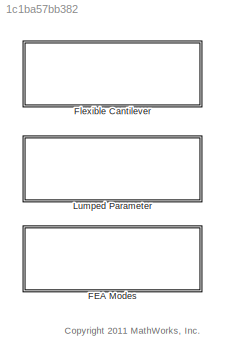
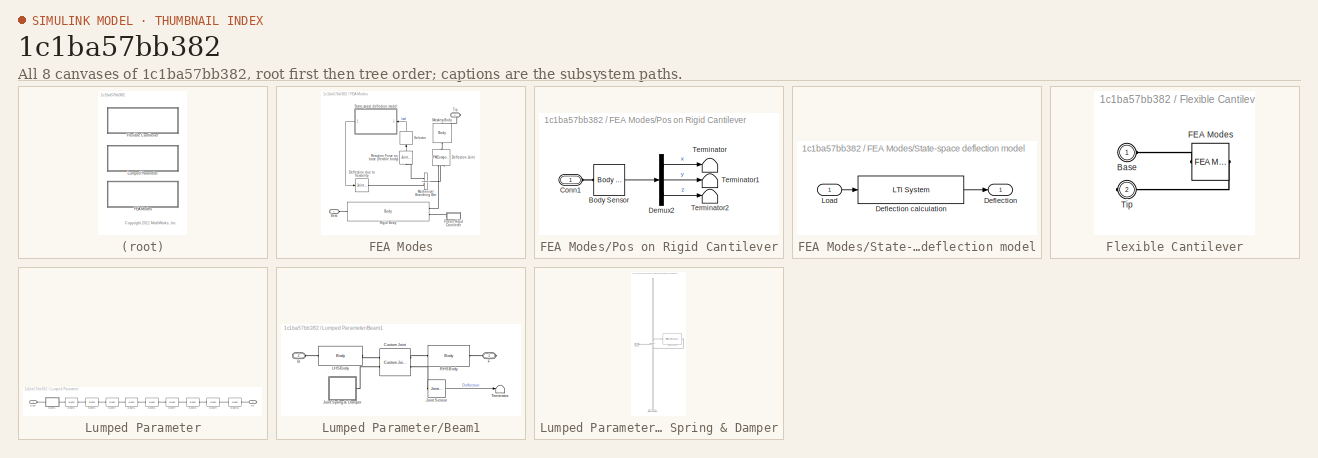
[diagram: thumbnail index - all 8 canvases of the model, root first then tree order]
MODEL slx_1c1ba57bb382
KIND library
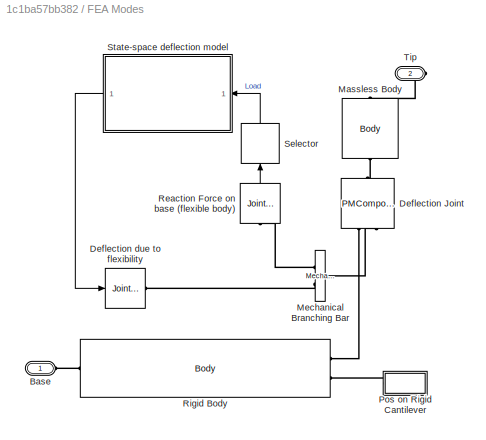
BLOCK [SubSystem] FEA Modes
  FunctionWithSeparateData = off
  MaskHideContents = off
  MinAlgLoopOccurrences = off
  Opaque = off
  Ports = [0, 0, 0, 0, 0, 1, 1]
  PropExecContextOutsideSubsystem = off
  RTWSystemCode = Auto
  RequestExecContextInheritance = off
  ShowPortLabels = FromPortBlockName
BLOCK [PMIOPort] FEA Modes/Base
  Port = 1
  Side = Left
BLOCK [PMComponent] FEA Modes/Deflection Joint
  CloseFcn = mech_support('CloseFcn',gcbh);
  CopyFcn = mech_rtmsupport('CopyFcn',gcbh);mech_support('CopyFcn',gcbh);
  DeleteFcn = mech_rtmsupport('DeleteFcn',gcbh);mech_support('DeleteFcn',gcbh);
  DialogController = MECH.DynMechDlgSource
  InitFcn = mech_support('InitFcn');
  LConnTagsString = __newl0|SA1
  LeftPortType = blob
  LoadFcn = mech_rtmsupport('LoadFcn',gcbh);mech_support('LoadFcn',gcbh);
  ModelCloseFcn = mech_support('ModelCloseFcn',gcbh);
  NameChangeFcn = mech_support('NameChangeFcn',gcbh);
  PhysicalDomain = mechanical
  Ports = [0, 0, 0, 0, 0, 2, 1]
  PostSaveFcn = mech_rtmsupport('PostSaveFcn',gcbh);mech_support('PostSaveFcn');
  PreCopyFcn = mech_rtmsupport('PreCopyFcn',gcbh);
  PreDeleteFcn = mech_rtmsupport('PreDeleteFcn',gcbh);
  PreSaveFcn = mech_rtmsupport('PreSaveFcn',gcbh);mech_support('PreSaveFcn');
  RConnTagsString = __newr0
  RightPortType = blob
  StartFcn = mech_support('StartFcn',gcbh);
  StopFcn = mech_support('StopFcn',gcbh);
  SubClassName = Unknown
  UndoDeleteFcn = mech_support('UndoDeleteFcn',gcbh);
BLOCK [Reference] FEA Modes/Deflection due to flexibility  REF=mblibv1/Sensors & 
Actuators/Joint Actuator
  AccelerationUnits = m/s^2
  ActiveIO = off
  ActuationStyle = Motion
  AngleUnits = deg
  ArcAccelerationUnits = deg/s^2
  ArcVelocityUnits = deg/s
  ClassName = JointActuator
  CoordPositionUnits = m
  DialogClass = MechanicalActuatorBlock
  ForceUnits = N
  PhysicalDomain = Mechanical
  PortType = blob
  Ports = [1, 0, 0, 0, 0, 0, 1]
  Primitive = P1
  ReferenceFrame = Absolute (World)
  SourceBlock = mblibv1/Sensors & \nActuators/Joint Actuator
  SourceType = Joint Actuator
  TorqueUnits = N*m
  UpdateFromCAD = off
  VelocityUnits = m/s
  Width = 1
BLOCK [Reference] FEA Modes/Massless Body  REF=mblibv1/Bodies/Body
  AttachedToCS = CG
  BodyColor = [1 0 0]
  BodyColorSelMode = MACHINE_DEFAULT
  CG = Left$CG$[0 0 0]$CS1$CS1$m$[0 0 0]$Euler X-Y-Z$deg$WORLD$false$none
  CGPos = [0 0 0]
  CGRot = [0 0 0]
  CS0Pos = []
  CS0Rot = []
  CS10Pos = []
  CS10Rot = []
  CS11Pos = []
  CS11Rot = []
  CS12Pos = []
  CS12Rot = []
  CS13Pos = []
  CS13Rot = []
  CS14Pos = []
  CS14Rot = []
  CS15Pos = []
  CS15Rot = []
  CS16Pos = []
  CS16Rot = []
  CS17Pos = []
  CS17Rot = []
  CS18Pos = []
  CS18Rot = []
  CS19Pos = []
  CS19Rot = []
  CS1Pos = [0 0 0]
  CS1Rot = [0 0 0]
  CS20Pos = []
  CS20Rot = []
  CS2Pos = [0 0 0]
  CS2Rot = [0 0 0]
  CS3Pos = []
  CS3Rot = []
  CS4Pos = []
  CS4Rot = []
  CS5Pos = []
  CS5Rot = []
  CS6Pos = []
  CS6Rot = []
  CS7Pos = []
  CS7Rot = []
  CS8Pos = []
  CS8Rot = []
  CS9Pos = []
  CS9Rot = []
  ClassName = Body
  Density = 1
  DensityUnits = kg/m^3
  DensityUse = false
  DialogClass = MechanicalBodyBlock
  GraphicsMode = MACHINE_DEFAULT
  Inertia = eye(3)
  InertiaUnits = kg*m^2
  LConnTagsString = CS1
  Mass = 0
  MassUnits = kg
  Ports = [0, 0, 0, 0, 0, 1, 1]
  RConnTagsString = CS2
  Shape = Cylinder
  ShapeDims = [1 1]
  ShapeUnits = m
  ShapeUse = false
  SourceBlock = mblibv1/Bodies/Body
  SourceType = Body
  UpdateFromCAD = off
  WorkingFrames = Left$CS1$[0 0 0]$Adjoining$Adjoining$m$[0 0 0]$Euler X-Y-Z$deg$WORLD$true$none#Right$CS2$[0 0 0]$CG$CG$m$[0 0 0]$Euler X-Y-Z$deg$WORLD$true$none
BLOCK [Reference] FEA Modes/Mechanical Branching Bar  REF=mblibv1/Utilities/Mechanical
Branching
Bar
  ClassName = BranchingBar
  DialogClass = MechanicalBranchingBarBlock
  LConnTagsString = _newl0
  NumSAPorts = 2
  Ports = [0, 0, 0, 0, 0, 1, 2]
  RConnTagsString = SA0|SA1
  SourceBlock = mblibv1/Utilities/Mechanical\nBranching\nBar
  SourceType = Mechanical Branching Bar
  UpdateFromCAD = off
BLOCK [SubSystem] FEA Modes/Pos on Rigid Cantilever
  FunctionWithSeparateData = off
  MaskHideContents = off
  MinAlgLoopOccurrences = off
  Opaque = off
  Ports = [0, 0, 0, 0, 0, 1]
  PropExecContextOutsideSubsystem = off
  RTWSystemCode = Auto
  RequestExecContextInheritance = off
BLOCK [Reference] FEA Modes/Pos on Rigid Cantilever/Body Sensor  REF=mblibv1/Sensors & 
Actuators/Body Sensor
  Acceleration = off
  AccelerationUnits = m/s^2
  ActiveIO = off
  Angle = on
  AngleUnits = deg
  ArcAcceleration = off
  ArcAccelerationUnits = deg/s^2
  ArcVelocity = off
  ArcVelocityUnits = deg/s
  ClassName = BodySensor
  CoordPosition = on
  CoordPositionUnits = m
  DialogClass = MechanicalSensorBlock
  Muxed = on
  OutputVector = [1]
  PhysicalDomain = Mechanical
  PortType = blob
  Ports = [0, 1, 0, 0, 0, 1]
  Pose = off
  Quaternion = on
  QuaternionDDT = off
  QuaternionDT = off
  QuaternionUnits = off
  ReferenceFrame = Absolute (World)
  SourceBlock = mblibv1/Sensors & \nActuators/Body Sensor
  SourceType = Body Sensor
  UpdateFromCAD = off
  Velocity = off
  VelocityUnits = m/s
  Width = 3
BLOCK [PMIOPort] FEA Modes/Pos on Rigid Cantilever/Conn1
  Port = 1
  Side = Left
BLOCK [Demux] FEA Modes/Pos on Rigid Cantilever/Demux2
  DisplayOption = bar
  Outputs = 3
  Ports = [1, 3]
BLOCK [Terminator] FEA Modes/Pos on Rigid Cantilever/Terminator
BLOCK [Terminator] FEA Modes/Pos on Rigid Cantilever/Terminator1
BLOCK [Terminator] FEA Modes/Pos on Rigid Cantilever/Terminator2
BLOCK [Reference] FEA Modes/Reaction Force on base (flexible body)  REF=mblibv1/Sensors & 
Actuators/Joint Sensor
  Acceleration = off
  AccelerationUnits = m/s^2
  ActiveIO = off
  Angle = on
  AngleUnits = deg
  ArcAcceleration = off
  ArcAccelerationUnits = deg/s^2
  ArcVelocity = off
  ArcVelocityUnits = deg/s
  ClassName = JointSensor
  CoordPosition = off
  CoordPositionUnits = m
  DialogClass = MechanicalSensorBlock
  Force = off
  ForceUnits = N
  Muxed = on
  OutputVector = [1]
  PhysicalDomain = Mechanical
  PortType = blob
  Ports = [0, 1, 0, 0, 0, 1]
  Pose = off
  Primitive = P1
  Quaternion = on
  QuaternionDDT = off
  QuaternionDT = off
  QuaternionUnits = off
  ReactionForce = on
  ReactionForceUnits = N
  ReactionMoment = off
  ReactionMomentUnits = N*m
  ReactionReferenceFrame = Local (Body CS)
  ReactionSensedSide = Base
  ReferenceFrame = Absolute (World)
  SourceBlock = mblibv1/Sensors & \nActuators/Joint Sensor
  SourceType = Joint Sensor
  Torque = off
  TorqueUnits = N*m
  UpdateFromCAD = off
  Velocity = off
  VelocityUnits = m/s
  Width = 1
BLOCK [Reference] FEA Modes/Rigid Body  REF=mblibv1/Bodies/Body
  AttachedToCS = 1
  BodyColor = [0.5 0.5 0.5]
  BodyColorSelMode = MACHINE_DEFAULT
  CG = Left$CG$[L/2 0 0]$CS1$CS1$m$[0 0 0]$Euler X-Y-Z$deg$CS1$false$none
  CGPos = [L/2 0 0]
  CGRot = [0 0 0]
  CS0Pos = []
  CS0Rot = []
  CS10Pos = [0 a -b]
  CS10Rot = [0 0 0]
  CS11Pos = []
  CS11Rot = []
  CS12Pos = []
  CS12Rot = []
  CS13Pos = []
  CS13Rot = []
  CS14Pos = []
  CS14Rot = []
  CS15Pos = []
  CS15Rot = []
  CS16Pos = []
  CS16Rot = []
  CS17Pos = []
  CS17Rot = []
  CS18Pos = []
  CS18Rot = []
  CS19Pos = []
  CS19Rot = []
  CS1Pos = [0 0 0]
  CS1Rot = [0 0 0]
  CS20Pos = []
  CS20Rot = []
  CS2Pos = [0 a b]
  CS2Rot = [0 0 0]
  CS3Pos = [0 a -b]
  CS3Rot = [0 0 0]
  CS4Pos = [0 -a -b]
  CS4Rot = [0 0 0]
  CS5Pos = [0 -a b]
  CS5Rot = [0 0 0]
  CS6Pos = [L/2 0 0]
  CS6Rot = [0 0 0]
  CS7Pos = [0 a b]
  CS7Rot = [0 0 0]
  CS8Pos = [0 -a -b]
  CS8Rot = [0 0 0]
  CS9Pos = [0 -a b]
  CS9Rot = [0 0 0]
  ClassName = Body
  Density = 1
  DensityUnits = kg/m^3
  DensityUse = false
  DialogClass = MechanicalBodyBlock
  GraphicsMode = 1
  Inertia = inertia
  InertiaUnits = kg*m^2
  LConnTagsString = CS1
  Mass = mass
  MassUnits = kg
  Ports = [0, 0, 0, 0, 0, 1, 2]
  RConnTagsString = CS6|CS8
  Shape = Cylinder
  ShapeDims = [1 1]
  ShapeUnits = m
  ShapeUse = false
  SourceBlock = mblibv1/Bodies/Body
  SourceType = Body
  UpdateFromCAD = off
  WorkingFrames = Left$CS1$[0 0 0]$Adjoining$Adjoining$m$[0 0 0]$Euler X-Y-Z$deg$Adjoining$true$none#Right$CS2$[0 a b]$CS1$CS1$m$[0 0 0]$Euler X-Y-Z$deg$CS1$false$none#Right$CS3$[0 a -b]$CS1$CS1$m$[0 0 0]$Euler X-Y-Z$deg$CS1$false$none#Right$CS5$[0 -a b]$CS1$CS1$m$[0 0 0]$Euler X-Y-Z$deg$CS1$false$none#Right$CS4$[0 -a -b]$CS1$CS1$m$[0 0 0]$Euler X-Y-Z$deg$CS1$false$none#Right$CS6$[L/2 0 0]$CG$CG$m$[0 0 0]$Euler X-Y...<+292ch>
BLOCK [Selector] FEA Modes/Selector
  IndexOptions = Index vector (dialog)
  Indices = [2]
  InputPortWidth = 3
  OutputSizes = 1
  Ports = [1, 1]
BLOCK [SubSystem] FEA Modes/State-space deflection model
  FunctionWithSeparateData = off
  MaskHideContents = off
  MinAlgLoopOccurrences = off
  Opaque = off
  Ports = [1, 1]
  PropExecContextOutsideSubsystem = off
  RTWSystemCode = Auto
  RequestExecContextInheritance = off
BLOCK [Outport] FEA Modes/State-space deflection model/Deflection
  IconDisplay = Port number
BLOCK [Reference] FEA Modes/State-space deflection model/Deflection calculation  REF=cstblocks/LTI System
  FunctionWithSeparateData = off
  IC = []
  Ports = [1, 1]
  RTWMemSecDataConstants = Inherit from model
  RTWMemSecDataInternal = Inherit from model
  RTWMemSecDataParameters = Inherit from model
  RTWMemSecFuncExecute = Inherit from model
  RTWMemSecFuncInitTerm = Inherit from model
  ShowPortLabels = FromPortIcon
  SourceBlock = cstblocks/LTI System
  SourceType = LTI Block
  SystemSampleTime = -1
  sys = ss_cantilever_pva
BLOCK [Inport] FEA Modes/State-space deflection model/Load
  IconDisplay = Port number
BLOCK [PMIOPort] FEA Modes/Tip
  Port = 2
  Side = Right
BLOCK [SubSystem] Flexible Cantilever
  BlockChoice = FEA Modes
  FunctionWithSeparateData = off
  MaskHideContents = off
  MemberBlocks = FEA Modes,Lumped Parameter
  MinAlgLoopOccurrences = off
  Opaque = off
  Ports = [0, 0, 0, 0, 0, 1, 1]
  PropExecContextOutsideSubsystem = off
  RTWSystemCode = Auto
  RequestExecContextInheritance = off
  TemplateBlock = self
BLOCK [PMIOPort] Flexible Cantilever/Base
  Port = 1
  Side = Left
BLOCK [Reference] Flexible Cantilever/FEA Modes  REF=Flex_Cantilever_Lib/FEA Modes
  Ports = [0, 0, 0, 0, 0, 1, 1]
  SourceBlock = Flex_Cantilever_Lib/FEA Modes
  SourceType = Cantilever
  cantileverData = cantilever_aluminum
BLOCK [PMIOPort] Flexible Cantilever/Tip
  Port = 2
  Side = Right
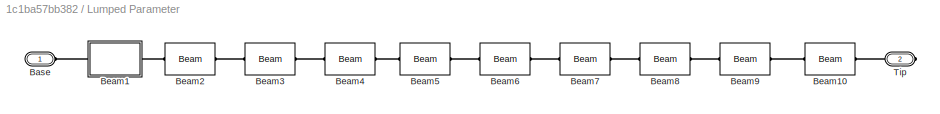
BLOCK [SubSystem] Lumped Parameter
  FunctionWithSeparateData = off
  MaskHideContents = off
  MinAlgLoopOccurrences = off
  Opaque = off
  Ports = [0, 0, 0, 0, 0, 1, 1]
  PropExecContextOutsideSubsystem = off
  RTWSystemCode = Auto
  RequestExecContextInheritance = off
BLOCK [PMIOPort] Lumped Parameter/Base
  Port = 1
  Side = Left
BLOCK [SubSystem] Lumped Parameter/Beam1
  FunctionWithSeparateData = off
  MaskHideContents = off
  MinAlgLoopOccurrences = off
  Opaque = off
  Ports = [0, 0, 0, 0, 0, 1, 1]
  PropExecContextOutsideSubsystem = off
  RTWSystemCode = Auto
  RequestExecContextInheritance = off
BLOCK [PMIOPort] Lumped Parameter/Beam1/B
  Port = 2
  Side = Left
BLOCK [Reference] Lumped Parameter/Beam1/Custom Joint  REF=mblibv1/Joints/Custom Joint
  ClassName = Joint
  CutJoint = off
  DialogClass = JointBlock
  LConnTagsString = __newl0|SA1
  MarkAsCut = off
  NumSAPorts = 2
  P1Axis = []
  P2Axis = []
  P3Axis = []
  Ports = [0, 0, 0, 0, 0, 2, 2]
  PrimitiveProps = R1$Base$[0 0 1]$Revolute
  Primitives = revolute
  R1Axis = [0 0 1]
  R2Axis = []
  R3Axis = []
  RConnTagsString = __newr0|SA1
  SAxis = []
  SourceBlock = mblibv1/Joints/Custom Joint
  SourceType = Custom Joint
  UpdateFromCAD = off
BLOCK [PMIOPort] Lumped Parameter/Beam1/F
  Port = 1
  Side = Right
BLOCK [Reference] Lumped Parameter/Beam1/Joint Sensor  REF=mblibv1/Sensors & 
Actuators/Joint Sensor
  Acceleration = off
  AccelerationUnits = m/s^2
  ActiveIO = off
  Angle = on
  AngleUnits = rad
  ArcAcceleration = off
  ArcAccelerationUnits = deg/s^2
  ArcVelocity = off
  ArcVelocityUnits = rad/s
  ClassName = JointSensor
  CoordPosition = on
  CoordPositionUnits = m
  DialogClass = MechanicalSensorBlock
  Force = off
  ForceUnits = N
  Muxed = off
  OutputVector = [1]
  PhysicalDomain = Mechanical
  PortType = blob
  Ports = [0, 1, 0, 0, 0, 1]
  Pose = off
  Primitive = R1
  Quaternion = on
  QuaternionDDT = off
  QuaternionDT = off
  QuaternionUnits = off
  ReactionForce = off
  ReactionForceUnits = N
  ReactionMoment = off
  ReactionMomentUnits = N*m
  ReactionReferenceFrame = Absolute (World)
  ReactionSensedSide = Base
  ReferenceFrame = Absolute (World)
  SourceBlock = mblibv1/Sensors & \nActuators/Joint Sensor
  SourceType = Joint Sensor
  Torque = off
  TorqueUnits = N*m
  UpdateFromCAD = off
  Velocity = off
  VelocityUnits = m/s
  Width = 1
BLOCK [SubSystem] Lumped Parameter/Beam1/Joint Spring & Damper
  CloseFcn = mech_support('CloseFcn',gcbh);
  CopyFcn = mech_rtmsupport('CopyFcn',gcbh);mech_support('CopyFcn',gcbh);
  DeleteFcn = mech_rtmsupport('DeleteFcn',gcbh);mech_support('DeleteFcn',gcbh);
  DialogController = MECH.DynMechDlgSource
  FunctionWithSeparateData = off
  LoadFcn = mech_rtmsupport('LoadFcn',gcbh);mech_support('LoadFcn',gcbh);
  MaskHideContents = off
  MinAlgLoopOccurrences = off
  ModelCloseFcn = mech_support('ModelCloseFcn',gcbh);
  NameChangeFcn = mech_support('NameChangeFcn',gcbh);
  Opaque = off
  Ports = [0, 0, 0, 0, 0, 1]
  PostSaveFcn = mech_rtmsupport('PostSaveFcn',gcbh);mech_support('PostSaveFcn');
  PreCopyFcn = mech_rtmsupport('PreCopyFcn',gcbh);
  PreDeleteFcn = mech_rtmsupport('PreDeleteFcn',gcbh);
  PreSaveFcn = mech_rtmsupport('PreSaveFcn',gcbh);mech_support('PreSaveFcn');
  PropExecContextOutsideSubsystem = off
  RTWSystemCode = Auto
  RequestExecContextInheritance = off
  StartFcn = mech_support('StartFcn',gcbh);
  StopFcn = mech_support('StopFcn',gcbh);
  UndoDeleteFcn = mech_support('UndoDeleteFcn',gcbh);
BLOCK [PMIOPort] Lumped Parameter/Beam1/Joint Spring & Damper/Conn1
  Port = 1
  Side = Left
BLOCK [Reference] Lumped Parameter/Beam1/Joint Spring & Damper/Mechanical Branching Bar  REF=mblibv1/Utilities/Mechanical
Branching
Bar
  ClassName = BranchingBar
  DialogClass = MechanicalBranchingBarBlock
  LConnTagsString = _newl0
  NumSAPorts = 14
  Ports = [0, 0, 0, 0, 0, 1, 14]
  RConnTagsString = SA1|SA2|SA3|SA4|SA5|SA6|SA7|SA8|SA9|SA10|SA11|SA12|SA13|SA14
  SourceBlock = mblibv1/Utilities/Mechanical\nBranching\nBar
  SourceType = Mechanical Branching Bar
  UpdateFromCAD = off
BLOCK [Reference] Lumped Parameter/Beam1/Joint Spring & Damper/SpringDamper4  REF=SingleDofForceElement/Primitive Spring&Damper
  Ports = [0, 0, 0, 0, 0, 1, 1]
  SourceBlock = SingleDofForceElement/Primitive Spring&Damper
  SourceType = Unknown
  actuatedPrimitive = R1
  angleUnits = rad
  angleVelocityUnits = rad/s
  damperConstant = fBeamElement.matDamping
  damperVelocityOffset = 0
  forceUnits = N
  positionUnits = m
  springConstant = fBeamElement.EI/fBeamElement.length
  springPositionOffset = 0
  torqueUnits = N*m
  velocityUnits = m/s
BLOCK [Reference] Lumped Parameter/Beam1/LHSBody  REF=mblibv1/Bodies/Body
  AttachedToCS = 1
  BodyColor = [0.5 0.5 0.5]
  BodyColorSelMode = MACHINE_DEFAULT
  CG = Left$CG$[fBeamElement.length  0 0]/4$CS1$CS1$m$[0 0 0]$Euler X-Y-Z$deg$CS1$false$none
  CGPos = [fBeamElement.length  0 0]/4
  CGRot = [0 0 0]
  CS0Pos = []
  CS0Rot = []
  CS10Pos = []
  CS10Rot = []
  CS11Pos = []
  CS11Rot = []
  CS12Pos = []
  CS12Rot = []
  CS13Pos = []
  CS13Rot = []
  CS14Pos = []
  CS14Rot = []
  CS15Pos = []
  CS15Rot = []
  CS16Pos = []
  CS16Rot = []
  CS17Pos = []
  CS17Rot = []
  CS18Pos = []
  CS18Rot = []
  CS19Pos = []
  CS19Rot = []
  CS1Pos = [0 0 0]
  CS1Rot = [0 0 0]
  CS20Pos = []
  CS20Rot = []
  CS2Pos = [fBeamElement.length  0 0]/2
  CS2Rot = [0 0 0]
  CS3Pos = [0 0 0]
  CS3Rot = [0 0 0]
  CS4Pos = [0 0 0]
  CS4Rot = [0 0 0]
  CS5Pos = []
  CS5Rot = []
  CS6Pos = []
  CS6Rot = []
  CS7Pos = []
  CS7Rot = []
  CS8Pos = []
  CS8Rot = []
  CS9Pos = []
  CS9Rot = []
  ClassName = Body
  Density = 1
  DensityUnits = kg/m^3
  DensityUse = false
  DialogClass = MechanicalBodyBlock
  GraphicsMode = 1
  Inertia = fBeamElement.inertia
  InertiaUnits = kg*m^2
  LConnTagsString = CS1
  Mass = fBeamElement.mass
  MassUnits = kg
  Ports = [0, 0, 0, 0, 0, 1, 1]
  RConnTagsString = CS2
  Shape = Cylinder
  ShapeDims = [1 1]
  ShapeUnits = m
  ShapeUse = false
  SourceBlock = mblibv1/Bodies/Body
  SourceType = Body
  UpdateFromCAD = off
  WorkingFrames = Left$CS1$[0 0 0]$Adjoining$Adjoining$m$[0 0 0]$Euler X-Y-Z$deg$Adjoining$true$none#Right$CS2$[fBeamElement.length  0 0]/2$CS1$CS1$m$[0 0 0]$Euler X-Y-Z$deg$CS1$true$none#Left$CS3$[0 0 0]$CG$CG$m$[0 0 0]$Euler X-Y-Z$deg$CS1$false$none#Right$CS4$[0 0 0]$CG$CG$m$[0 0 0]$Euler X-Y-Z$deg$CS1$false$none
BLOCK [Reference] Lumped Parameter/Beam1/RHSBody  REF=mblibv1/Bodies/Body
  AttachedToCS = 1
  BodyColor = [0.5 0.5 0.5]
  BodyColorSelMode = MACHINE_DEFAULT
  CG = Left$CG$[fBeamElement.length  0 0]/2$CS1$CS1$m$[0 0 0]$Euler X-Y-Z$deg$CS1$false$none
  CGPos = [fBeamElement.length  0 0]/2
  CGRot = [0 0 0]
  CS0Pos = []
  CS0Rot = []
  CS10Pos = []
  CS10Rot = []
  CS11Pos = []
  CS11Rot = []
  CS12Pos = []
  CS12Rot = []
  CS13Pos = []
  CS13Rot = []
  CS14Pos = []
  CS14Rot = []
  CS15Pos = []
  CS15Rot = []
  CS16Pos = []
  CS16Rot = []
  CS17Pos = []
  CS17Rot = []
  CS18Pos = []
  CS18Rot = []
  CS19Pos = []
  CS19Rot = []
  CS1Pos = [0 0 0]
  CS1Rot = [0 0 0]
  CS20Pos = []
  CS20Rot = []
  CS2Pos = [fBeamElement.length  0 0]/2
  CS2Rot = [0 0 0]
  CS3Pos = [0 0 0]
  CS3Rot = [0 0 0]
  CS4Pos = [0 0 0]
  CS4Rot = [0 0 0]
  CS5Pos = []
  CS5Rot = []
  CS6Pos = []
  CS6Rot = []
  CS7Pos = []
  CS7Rot = []
  CS8Pos = []
  CS8Rot = []
  CS9Pos = []
  CS9Rot = []
  ClassName = Body
  Density = 1
  DensityUnits = kg/m^3
  DensityUse = false
  DialogClass = MechanicalBodyBlock
  GraphicsMode = 1
  Inertia = fBeamElement.inertia
  InertiaUnits = kg*m^2
  LConnTagsString = CS1
  Mass = fBeamElement.mass
  MassUnits = kg
  Ports = [0, 0, 0, 0, 0, 1, 1]
  RConnTagsString = CS2
  Shape = Cylinder
  ShapeDims = [1 1]
  ShapeUnits = m
  ShapeUse = false
  SourceBlock = mblibv1/Bodies/Body
  SourceType = Body
  UpdateFromCAD = off
  WorkingFrames = Left$CS1$[0 0 0]$Adjoining$Adjoining$m$[0 0 0]$Euler X-Y-Z$deg$Adjoining$true$none#Right$CS2$[fBeamElement.length  0 0]/2$CS1$CS1$m$[0 0 0]$Euler X-Y-Z$deg$CS1$true$none#Right$CS3$[0 0 0]$CG$CG$m$[0 0 0]$Euler X-Y-Z$deg$CS1$false$none#Left$CS4$[0 0 0]$CG$CG$m$[0 0 0]$Euler X-Y-Z$deg$CS1$false$none
BLOCK [Terminator] Lumped Parameter/Beam1/Terminator
BLOCK [Reference] Lumped Parameter/Beam10  REF=Flex_Cantilever_Element_Lib/Beam
  Ports = [0, 0, 0, 0, 0, 1, 1]
  SourceBlock = Flex_Cantilever_Element_Lib/Beam
  SourceType = SubSystem
BLOCK [Reference] Lumped Parameter/Beam2  REF=Flex_Cantilever_Element_Lib/Beam
  Ports = [0, 0, 0, 0, 0, 1, 1]
  SourceBlock = Flex_Cantilever_Element_Lib/Beam
  SourceType = SubSystem
BLOCK [Reference] Lumped Parameter/Beam3  REF=Flex_Cantilever_Element_Lib/Beam
  Ports = [0, 0, 0, 0, 0, 1, 1]
  SourceBlock = Flex_Cantilever_Element_Lib/Beam
  SourceType = SubSystem
BLOCK [Reference] Lumped Parameter/Beam4  REF=Flex_Cantilever_Element_Lib/Beam
  Ports = [0, 0, 0, 0, 0, 1, 1]
  SourceBlock = Flex_Cantilever_Element_Lib/Beam
  SourceType = SubSystem
BLOCK [Reference] Lumped Parameter/Beam5  REF=Flex_Cantilever_Element_Lib/Beam
  Ports = [0, 0, 0, 0, 0, 1, 1]
  SourceBlock = Flex_Cantilever_Element_Lib/Beam
  SourceType = SubSystem
BLOCK [Reference] Lumped Parameter/Beam6  REF=Flex_Cantilever_Element_Lib/Beam
  Ports = [0, 0, 0, 0, 0, 1, 1]
  SourceBlock = Flex_Cantilever_Element_Lib/Beam
  SourceType = SubSystem
BLOCK [Reference] Lumped Parameter/Beam7  REF=Flex_Cantilever_Element_Lib/Beam
  Ports = [0, 0, 0, 0, 0, 1, 1]
  SourceBlock = Flex_Cantilever_Element_Lib/Beam
  SourceType = SubSystem
BLOCK [Reference] Lumped Parameter/Beam8  REF=Flex_Cantilever_Element_Lib/Beam
  Ports = [0, 0, 0, 0, 0, 1, 1]
  SourceBlock = Flex_Cantilever_Element_Lib/Beam
  SourceType = SubSystem
BLOCK [Reference] Lumped Parameter/Beam9  REF=Flex_Cantilever_Element_Lib/Beam
  Ports = [0, 0, 0, 0, 0, 1, 1]
  SourceBlock = Flex_Cantilever_Element_Lib/Beam
  SourceType = SubSystem
BLOCK [PMIOPort] Lumped Parameter/Tip
  Port = 2
  Side = Right
ANNOTATION (root): <copyright redacted>
LINE FEA Modes/Pos on Rigid Cantilever/Body Sensor:1 -> FEA Modes/Pos on Rigid Cantilever/Demux2:1
LINE FEA Modes/Pos on Rigid Cantilever/Demux2:1 -> FEA Modes/Pos on Rigid Cantilever/Terminator:1
LINE FEA Modes/Pos on Rigid Cantilever/Demux2:2 -> FEA Modes/Pos on Rigid Cantilever/Terminator1:1
LINE FEA Modes/Pos on Rigid Cantilever/Demux2:3 -> FEA Modes/Pos on Rigid Cantilever/Terminator2:1
LINE FEA Modes/Reaction Force on base (flexible body):1 -> FEA Modes/Selector:1
LINE FEA Modes/Selector:1 -> FEA Modes/State-space deflection model:1
LINE FEA Modes/State-space deflection model/Deflection calculation:1 -> FEA Modes/State-space deflection model/Deflection:1
LINE FEA Modes/State-space deflection model/Load:1 -> FEA Modes/State-space deflection model/Deflection calculation:1
LINE FEA Modes/State-space deflection model:1 -> FEA Modes/Deflection due to flexibility:1
LINE Lumped Parameter/Beam1/Joint Sensor:1 -> Lumped Parameter/Beam1/Terminator:1
PLINE FEA Modes/Base:RConn1 -- FEA Modes/Rigid Body:LConn1
PLINE FEA Modes/Deflection Joint:LConn1 -- FEA Modes/Rigid Body:RConn1
PLINE FEA Modes/Deflection Joint:LConn2 -- FEA Modes/Mechanical Branching Bar:LConn1
PLINE FEA Modes/Deflection Joint:RConn1 -- FEA Modes/Massless Body:LConn1
PLINE FEA Modes/Deflection due to flexibility:RConn1 -- FEA Modes/Mechanical Branching Bar:RConn2
PLINE FEA Modes/Massless Body:RConn1 -- FEA Modes/Tip:RConn1
PLINE FEA Modes/Mechanical Branching Bar:RConn1 -- FEA Modes/Reaction Force on base (flexible body):LConn1
PLINE FEA Modes/Pos on Rigid Cantilever/Body Sensor:LConn1 -- FEA Modes/Pos on Rigid Cantilever/Conn1:RConn1
PLINE FEA Modes/Pos on Rigid Cantilever:LConn1 -- FEA Modes/Rigid Body:RConn2
PLINE Flexible Cantilever/Base:RConn1 -- Flexible Cantilever/FEA Modes:LConn1
PLINE Flexible Cantilever/FEA Modes:RConn1 -- Flexible Cantilever/Tip:RConn1
PLINE Lumped Parameter/Base:RConn1 -- Lumped Parameter/Beam1:LConn1
PLINE Lumped Parameter/Beam1/B:RConn1 -- Lumped Parameter/Beam1/LHSBody:LConn1
PLINE Lumped Parameter/Beam1/Custom Joint:LConn1 -- Lumped Parameter/Beam1/LHSBody:RConn1
PLINE Lumped Parameter/Beam1/Custom Joint:LConn2 -- Lumped Parameter/Beam1/Joint Spring & Damper:LConn1
PLINE Lumped Parameter/Beam1/Custom Joint:RConn1 -- Lumped Parameter/Beam1/RHSBody:LConn1
PLINE Lumped Parameter/Beam1/Custom Joint:RConn2 -- Lumped Parameter/Beam1/Joint Sensor:LConn1
PLINE Lumped Parameter/Beam1/F:RConn1 -- Lumped Parameter/Beam1/RHSBody:RConn1
PLINE Lumped Parameter/Beam10:LConn1 -- Lumped Parameter/Beam9:RConn1
PLINE Lumped Parameter/Beam10:RConn1 -- Lumped Parameter/Tip:RConn1
PLINE Lumped Parameter/Beam1:RConn1 -- Lumped Parameter/Beam2:LConn1
PLINE Lumped Parameter/Beam2:RConn1 -- Lumped Parameter/Beam3:LConn1
PLINE Lumped Parameter/Beam3:RConn1 -- Lumped Parameter/Beam4:LConn1
PLINE Lumped Parameter/Beam4:RConn1 -- Lumped Parameter/Beam5:LConn1
PLINE Lumped Parameter/Beam5:RConn1 -- Lumped Parameter/Beam6:LConn1
PLINE Lumped Parameter/Beam6:RConn1 -- Lumped Parameter/Beam7:LConn1
PLINE Lumped Parameter/Beam7:RConn1 -- Lumped Parameter/Beam8:LConn1
PLINE Lumped Parameter/Beam8:RConn1 -- Lumped Parameter/Beam9:LConn1
